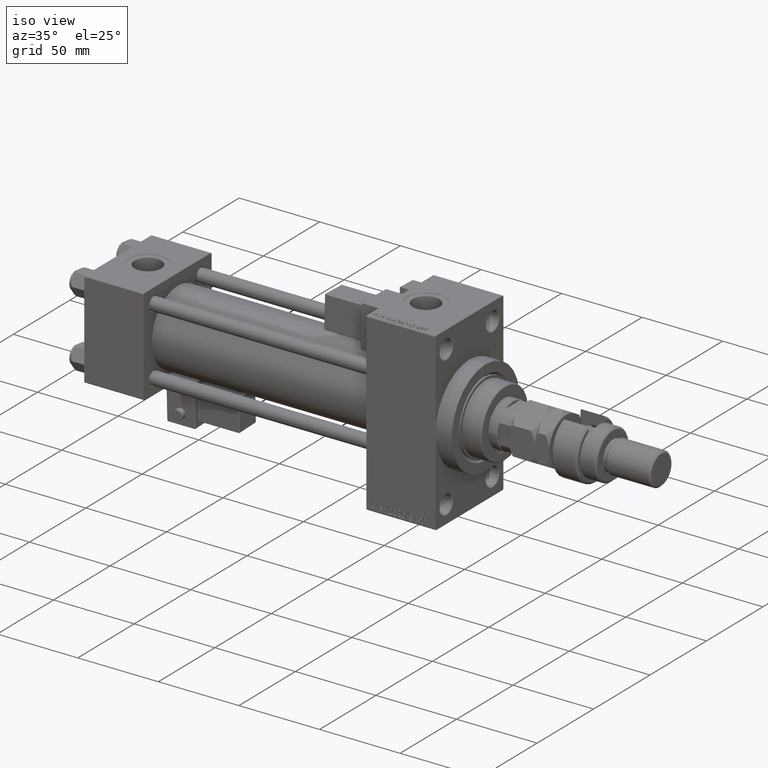
[diagram: clean part render]
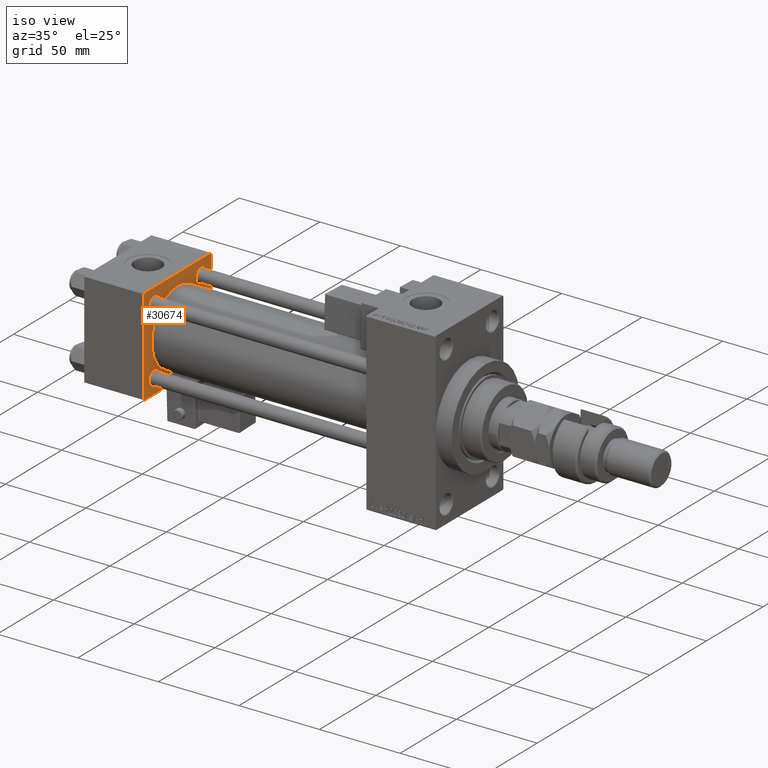
[diagram: same view with one face highlighted and labeled with its STEP entity id]
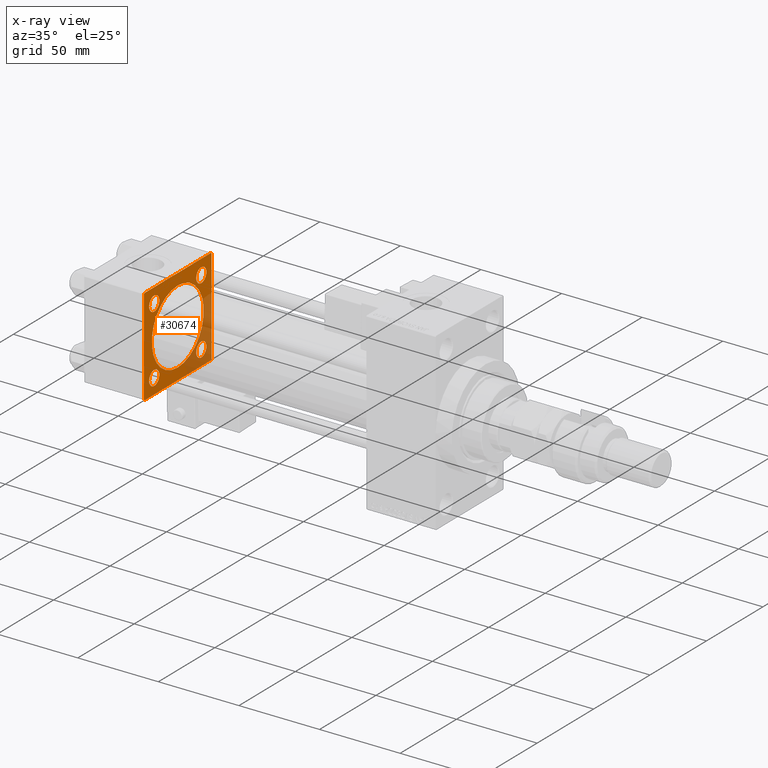
[diagram: x-ray of the same camera — body ghosted, the highlighted face saturated]
A machine part, iso view. The second image highlights one B-rep face of the part: STEP entity #30674.
The next image is the same camera in x-ray: the body ghosted, the highlighted face saturated — about 25% of this face is hidden behind the body in this view.
In plain terms, the highlighted planar face has unit normal (-1, 0, 0).
Its self-contained STEP definition (entity closure, byte-faithful):
#373 = DIRECTION ( 'NONE',  ( -1.000000000000000000, 0.000000000000000000, -0.000000000000000000 ) ) ;
#521 = DIRECTION ( 'NONE',  ( 0.000000000000000000, 0.000000000000000000, 1.000000000000000000 ) ) ;
#944 = LINE ( 'NONE', #29951, #35405 ) ;
#1176 = CARTESIAN_POINT ( 'NONE',  ( 37.00000000000000000, -29.50000000000001066, -30.00000000000000711 ) ) ;
#1608 = DIRECTION ( 'NONE',  ( 0.000000000000000000, -1.000000000000000000, -1.156482317317871725E-16 ) ) ;
#1789 = DIRECTION ( 'NONE',  ( 0.000000000000000000, 0.000000000000000000, -1.000000000000000000 ) ) ;
#2452 = VERTEX_POINT ( 'NONE', #32869 ) ;
#2667 = DIRECTION ( 'NONE',  ( 1.000000000000000000, -0.000000000000000000, 0.000000000000000000 ) ) ;
#3034 = EDGE_CURVE ( 'NONE', #18596, #51150, #33173, .T. ) ;
#3266 = CIRCLE ( 'NONE', #41217, 4.500000000000059508 ) ;
#3521 = EDGE_CURVE ( 'NONE', #53574, #22850, #52605, .T. ) ;
#3584 = CARTESIAN_POINT ( 'NONE',  ( 37.00000000000000000, 29.49999999999997868, -30.00000000000000000 ) ) ;
#3734 = ORIENTED_EDGE ( 'NONE', *, *, #8592, .T. ) ;
#5133 = EDGE_CURVE ( 'NONE', #43137, #28456, #26482, .T. ) ;
#5268 = EDGE_CURVE ( 'NONE', #52114, #28837, #3266, .T. ) ;
#5716 = VECTOR ( 'NONE', #1608, 1000.000000000000000 ) ;
#5830 = AXIS2_PLACEMENT_3D ( 'NONE', #10028, #26600, #26862 ) ;
#5910 = VECTOR ( 'NONE', #6056, 999.9999999999998863 ) ;
#6056 = DIRECTION ( 'NONE',  ( -0.000000000000000000, 0.7071067811865574537, 0.7071067811865376918 ) ) ;
#6166 = EDGE_CURVE ( 'NONE', #46315, #27228, #31816, .T. ) ;
#6347 = AXIS2_PLACEMENT_3D ( 'NONE', #50900, #51433, #17724 ) ;
#6947 = ORIENTED_EDGE ( 'NONE', *, *, #17845, .T. ) ;
#7663 = EDGE_CURVE ( 'NONE', #47950, #33315, #34149, .T. ) ;
#7927 = EDGE_CURVE ( 'NONE', #51038, #29719, #43184, .T. ) ;
#8293 = EDGE_LOOP ( 'NONE', ( #15297, #27211 ) ) ;
#8592 = EDGE_CURVE ( 'NONE', #28837, #52114, #8598, .T. ) ;
#8598 = CIRCLE ( 'NONE', #18282, 4.500000000000059508 ) ;
#8663 = FACE_BOUND ( 'NONE', #38001, .T. ) ;
#9140 = EDGE_CURVE ( 'NONE', #51150, #18596, #54508, .T. ) ;
#9191 = EDGE_CURVE ( 'NONE', #29961, #51038, #42519, .T. ) ;
#9908 = CARTESIAN_POINT ( 'NONE',  ( 37.00000000000000000, -20.84999999999999076, 16.34999999999994458 ) ) ;
#10028 = CARTESIAN_POINT ( 'NONE',  ( 37.00000000000000000, 20.84999999999999787, 20.85000000000000142 ) ) ;
#10399 = VECTOR ( 'NONE', #29528, 1000.000000000000000 ) ;
#10743 = DIRECTION ( 'NONE',  ( -1.000000000000000000, 0.000000000000000000, -0.000000000000000000 ) ) ;
#10795 = CARTESIAN_POINT ( 'NONE',  ( 37.00000000000000711, 2.146024240737016609E-16, -23.00000000000000000 ) ) ;
#11004 = DIRECTION ( 'NONE',  ( 0.000000000000000000, 0.000000000000000000, 1.000000000000000000 ) ) ;
#11784 = CARTESIAN_POINT ( 'NONE',  ( 37.00000000000000711, -2.602085213965210642E-15, 0.000000000000000000 ) ) ;
#11901 = VERTEX_POINT ( 'NONE', #10795 ) ;
#11960 = ORIENTED_EDGE ( 'NONE', *, *, #5133, .T. ) ;
#11989 = FACE_BOUND ( 'NONE', #23485, .T. ) ;
#13077 = CARTESIAN_POINT ( 'NONE',  ( 37.00000000000000000, 0.000000000000000000, 0.000000000000000000 ) ) ;
#13375 = DIRECTION ( 'NONE',  ( 0.000000000000000000, -0.7071067811865474617, 0.7071067811865474617 ) ) ;
#13834 = EDGE_CURVE ( 'NONE', #27228, #29961, #35064, .T. ) ;
#14023 = CARTESIAN_POINT ( 'NONE',  ( 37.00000000000000000, -29.49999999999998579, 29.99999999999999289 ) ) ;
#14033 = DIRECTION ( 'NONE',  ( -1.000000000000000000, 0.000000000000000000, -0.000000000000000000 ) ) ;
#14290 = CARTESIAN_POINT ( 'NONE',  ( 37.00000000000000000, -20.84999999999999076, 25.35000000000006182 ) ) ;
#14308 = EDGE_CURVE ( 'NONE', #22850, #53574, #30857, .T. ) ;
#14963 = DIRECTION ( 'NONE',  ( 0.000000000000000000, -1.000000000000000000, -1.156482317317871725E-16 ) ) ;
#15130 = CIRCLE ( 'NONE', #36313, 4.500000000000059508 ) ;
#15297 = ORIENTED_EDGE ( 'NONE', *, *, #14308, .T. ) ;
#15539 = AXIS2_PLACEMENT_3D ( 'NONE', #17647, #35795, #43812 ) ;
#15690 = EDGE_CURVE ( 'NONE', #17803, #11901, #26644, .T. ) ;
#16408 = FACE_OUTER_BOUND ( 'NONE', #23087, .T. ) ;
#16575 = CARTESIAN_POINT ( 'NONE',  ( 37.00000000000000000, -20.84999999999999076, 20.85000000000000497 ) ) ;
#16719 = CARTESIAN_POINT ( 'NONE',  ( 37.00000000000000711, -2.602085213965210642E-15, 23.00000000000000000 ) ) ;
#16826 = CARTESIAN_POINT ( 'NONE',  ( 37.00000000000000000, -30.00000000000000000, -29.50000000000001776 ) ) ;
#17224 = FACE_BOUND ( 'NONE', #8293, .T. ) ;
#17379 = DIRECTION ( 'NONE',  ( -1.000000000000000000, 0.000000000000000000, -0.000000000000000000 ) ) ;
#17486 = ORIENTED_EDGE ( 'NONE', *, *, #15690, .F. ) ;
#17598 = CARTESIAN_POINT ( 'NONE',  ( 37.00000000000000000, 29.49999999999999289, 30.00000000000000000 ) ) ;
#17647 = CARTESIAN_POINT ( 'NONE',  ( 37.00000000000000000, -20.84999999999999076, 20.85000000000000497 ) ) ;
#17724 = DIRECTION ( 'NONE',  ( 0.000000000000000000, 0.000000000000000000, 1.000000000000000000 ) ) ;
#17727 = ORIENTED_EDGE ( 'NONE', *, *, #43154, .F. ) ;
#17803 = VERTEX_POINT ( 'NONE', #16719 ) ;
#17845 = EDGE_CURVE ( 'NONE', #2452, #46315, #944, .T. ) ;
#18282 = AXIS2_PLACEMENT_3D ( 'NONE', #43870, #14033, #30877 ) ;
#18305 = EDGE_CURVE ( 'NONE', #11901, #17803, #36245, .T. ) ;
#18490 = DIRECTION ( 'NONE',  ( -0.000000000000000000, -0.7071067811865474617, -0.7071067811865474617 ) ) ;
#18596 = VERTEX_POINT ( 'NONE', #9908 ) ;
#18981 = DIRECTION ( 'NONE',  ( -1.000000000000000000, 0.000000000000000000, -0.000000000000000000 ) ) ;
#19863 = AXIS2_PLACEMENT_3D ( 'NONE', #13077, #373, #29922 ) ;
#20065 = EDGE_CURVE ( 'NONE', #33315, #47950, #15130, .T. ) ;
#22213 = ORIENTED_EDGE ( 'NONE', *, *, #6166, .T. ) ;
#22850 = VERTEX_POINT ( 'NONE', #23071 ) ;
#23071 = CARTESIAN_POINT ( 'NONE',  ( 37.00000000000000000, 20.84999999999999787, 16.34999999999994102 ) ) ;
#23087 = EDGE_LOOP ( 'NONE', ( #17727, #11960, #51389, #6947, #22213, #27184, #32672, #46777 ) ) ;
#23135 = CARTESIAN_POINT ( 'NONE',  ( 37.00000000000000000, 20.84999999999999787, -20.85000000000000142 ) ) ;
#23485 = EDGE_LOOP ( 'NONE', ( #47545, #23801 ) ) ;
#23679 = CARTESIAN_POINT ( 'NONE',  ( 37.00000000000000000, -20.84999999999999076, -25.35000000000006182 ) ) ;
#23801 = ORIENTED_EDGE ( 'NONE', *, *, #7663, .T. ) ;
#24408 = ORIENTED_EDGE ( 'NONE', *, *, #5268, .T. ) ;
#25142 = EDGE_LOOP ( 'NONE', ( #17486, #54261 ) ) ;
#25310 = AXIS2_PLACEMENT_3D ( 'NONE', #23135, #18981, #26709 ) ;
#26482 = LINE ( 'NONE', #31178, #5910 ) ;
#26600 = DIRECTION ( 'NONE',  ( -1.000000000000000000, 0.000000000000000000, -0.000000000000000000 ) ) ;
#26644 = CIRCLE ( 'NONE', #35498, 23.00000000000000000 ) ;
#26709 = DIRECTION ( 'NONE',  ( 0.000000000000000000, 0.000000000000000000, 1.000000000000000000 ) ) ;
#26862 = DIRECTION ( 'NONE',  ( 0.000000000000000000, 0.000000000000000000, 1.000000000000000000 ) ) ;
#26885 = ORIENTED_EDGE ( 'NONE', *, *, #9140, .T. ) ;
#27184 = ORIENTED_EDGE ( 'NONE', *, *, #13834, .T. ) ;
#27211 = ORIENTED_EDGE ( 'NONE', *, *, #3521, .T. ) ;
#27228 = VERTEX_POINT ( 'NONE', #14023 ) ;
#27655 = EDGE_CURVE ( 'NONE', #2452, #28456, #48749, .T. ) ;
#27860 = VECTOR ( 'NONE', #14963, 1000.000000000000000 ) ;
#28456 = VERTEX_POINT ( 'NONE', #49720 ) ;
#28837 = VERTEX_POINT ( 'NONE', #40705 ) ;
#29528 = DIRECTION ( 'NONE',  ( 0.000000000000000000, 0.000000000000000000, -1.000000000000000000 ) ) ;
#29719 = VERTEX_POINT ( 'NONE', #30848 ) ;
#29911 = ORIENTED_EDGE ( 'NONE', *, *, #3034, .T. ) ;
#29922 = DIRECTION ( 'NONE',  ( -0.000000000000000000, 0.000000000000000000, 1.000000000000000000 ) ) ;
#29951 = CARTESIAN_POINT ( 'NONE',  ( 37.00000000000000000, 29.49999999999999289, 30.00000000000000000 ) ) ;
#29961 = VERTEX_POINT ( 'NONE', #31875 ) ;
#30674 = ADVANCED_FACE ( 'NONE', ( #8663, #11989, #50932, #17224, #42100, #16408 ), #50658, .F. ) ;
#30848 = CARTESIAN_POINT ( 'NONE',  ( 37.00000000000000000, -29.50000000000000000, -30.00000000000000711 ) ) ;
#30857 = CIRCLE ( 'NONE', #53826, 4.500000000000059508 ) ;
#30877 = DIRECTION ( 'NONE',  ( 0.000000000000000000, 0.000000000000000000, 1.000000000000000000 ) ) ;
#30889 = CARTESIAN_POINT ( 'NONE',  ( 37.00000000000000000, 29.99999999999999289, -30.00000000000000000 ) ) ;
#31178 = CARTESIAN_POINT ( 'NONE',  ( 37.00000000000000000, 29.99999999999999289, -29.50000000000000000 ) ) ;
#31816 = LINE ( 'NONE', #35684, #27860 ) ;
#31875 = CARTESIAN_POINT ( 'NONE',  ( 37.00000000000000000, -30.00000000000000000, 29.49999999999999289 ) ) ;
#32672 = ORIENTED_EDGE ( 'NONE', *, *, #9191, .T. ) ;
#32869 = CARTESIAN_POINT ( 'NONE',  ( 37.00000000000000000, 29.99999999999999289, 29.50000000000000000 ) ) ;
#33173 = CIRCLE ( 'NONE', #15539, 4.500000000000059508 ) ;
#33315 = VERTEX_POINT ( 'NONE', #53960 ) ;
#33946 = CARTESIAN_POINT ( 'NONE',  ( 37.00000000000000000, -30.00000000000000000, 29.99999999999999289 ) ) ;
#34149 = CIRCLE ( 'NONE', #25310, 4.500000000000059508 ) ;
#35064 = LINE ( 'NONE', #39206, #50260 ) ;
#35405 = VECTOR ( 'NONE', #13375, 1000.000000000000114 ) ;
#35498 = AXIS2_PLACEMENT_3D ( 'NONE', #11784, #2667, #36381 ) ;
#35684 = CARTESIAN_POINT ( 'NONE',  ( 37.00000000000000000, 29.99999999999999289, 30.00000000000000000 ) ) ;
#35795 = DIRECTION ( 'NONE',  ( -1.000000000000000000, 0.000000000000000000, -0.000000000000000000 ) ) ;
#36245 = CIRCLE ( 'NONE', #6347, 23.00000000000000000 ) ;
#36313 = AXIS2_PLACEMENT_3D ( 'NONE', #36631, #49625, #45201 ) ;
#36381 = DIRECTION ( 'NONE',  ( 0.000000000000000000, 0.000000000000000000, 1.000000000000000000 ) ) ;
#36534 = CARTESIAN_POINT ( 'NONE',  ( 37.00000000000000000, 20.84999999999999787, 25.35000000000005826 ) ) ;
#36586 = CARTESIAN_POINT ( 'NONE',  ( 37.00000000000000000, 29.99999999999999289, 30.00000000000000000 ) ) ;
#36631 = CARTESIAN_POINT ( 'NONE',  ( 37.00000000000000000, 20.84999999999999787, -20.85000000000000142 ) ) ;
#37492 = VECTOR ( 'NONE', #1789, 1000.000000000000000 ) ;
#38001 = EDGE_LOOP ( 'NONE', ( #24408, #3734 ) ) ;
#38141 = CARTESIAN_POINT ( 'NONE',  ( 37.00000000000000000, 20.84999999999999787, 20.85000000000000142 ) ) ;
#38405 = DIRECTION ( 'NONE',  ( 0.000000000000000000, 0.000000000000000000, 1.000000000000000000 ) ) ;
#39206 = CARTESIAN_POINT ( 'NONE',  ( 37.00000000000000000, -30.00000000000000000, 29.49999999999999289 ) ) ;
#39428 = VECTOR ( 'NONE', #51744, 1000.000000000000114 ) ;
#39550 = EDGE_LOOP ( 'NONE', ( #29911, #26885 ) ) ;
#40705 = CARTESIAN_POINT ( 'NONE',  ( 37.00000000000000000, -20.84999999999999076, -16.34999999999994458 ) ) ;
#40838 = CARTESIAN_POINT ( 'NONE',  ( 37.00000000000000000, -20.84999999999999076, -20.85000000000000497 ) ) ;
#41217 = AXIS2_PLACEMENT_3D ( 'NONE', #40838, #10743, #11004 ) ;
#42100 = FACE_BOUND ( 'NONE', #25142, .T. ) ;
#42519 = LINE ( 'NONE', #33946, #10399 ) ;
#43137 = VERTEX_POINT ( 'NONE', #3584 ) ;
#43154 = EDGE_CURVE ( 'NONE', #43137, #29719, #48015, .T. ) ;
#43184 = LINE ( 'NONE', #1176, #39428 ) ;
#43812 = DIRECTION ( 'NONE',  ( 0.000000000000000000, 0.000000000000000000, 1.000000000000000000 ) ) ;
#43870 = CARTESIAN_POINT ( 'NONE',  ( 37.00000000000000000, -20.84999999999999076, -20.85000000000000497 ) ) ;
#45201 = DIRECTION ( 'NONE',  ( 0.000000000000000000, 0.000000000000000000, 1.000000000000000000 ) ) ;
#46315 = VERTEX_POINT ( 'NONE', #17598 ) ;
#46366 = CARTESIAN_POINT ( 'NONE',  ( 37.00000000000000000, 20.84999999999999787, -16.34999999999994102 ) ) ;
#46777 = ORIENTED_EDGE ( 'NONE', *, *, #7927, .T. ) ;
#47545 = ORIENTED_EDGE ( 'NONE', *, *, #20065, .T. ) ;
#47950 = VERTEX_POINT ( 'NONE', #46366 ) ;
#48015 = LINE ( 'NONE', #30889, #5716 ) ;
#48749 = LINE ( 'NONE', #36586, #37492 ) ;
#49625 = DIRECTION ( 'NONE',  ( -1.000000000000000000, 0.000000000000000000, -0.000000000000000000 ) ) ;
#49720 = CARTESIAN_POINT ( 'NONE',  ( 37.00000000000000000, 29.99999999999999289, -29.50000000000000000 ) ) ;
#50260 = VECTOR ( 'NONE', #18490, 1000.000000000000114 ) ;
#50315 = DIRECTION ( 'NONE',  ( -1.000000000000000000, 0.000000000000000000, -0.000000000000000000 ) ) ;
#50658 = PLANE ( 'NONE',  #19863 ) ;
#50900 = CARTESIAN_POINT ( 'NONE',  ( 37.00000000000000711, -2.602085213965210642E-15, 0.000000000000000000 ) ) ;
#50932 = FACE_BOUND ( 'NONE', #39550, .T. ) ;
#50990 = AXIS2_PLACEMENT_3D ( 'NONE', #16575, #17379, #521 ) ;
#51038 = VERTEX_POINT ( 'NONE', #16826 ) ;
#51150 = VERTEX_POINT ( 'NONE', #14290 ) ;
#51389 = ORIENTED_EDGE ( 'NONE', *, *, #27655, .F. ) ;
#51433 = DIRECTION ( 'NONE',  ( 1.000000000000000000, -0.000000000000000000, 0.000000000000000000 ) ) ;
#51744 = DIRECTION ( 'NONE',  ( 0.000000000000000000, 0.7071067811865474617, -0.7071067811865474617 ) ) ;
#52114 = VERTEX_POINT ( 'NONE', #23679 ) ;
#52605 = CIRCLE ( 'NONE', #5830, 4.500000000000059508 ) ;
#53574 = VERTEX_POINT ( 'NONE', #36534 ) ;
#53826 = AXIS2_PLACEMENT_3D ( 'NONE', #38141, #50315, #38405 ) ;
#53960 = CARTESIAN_POINT ( 'NONE',  ( 37.00000000000000000, 20.84999999999999787, -25.35000000000005826 ) ) ;
#54261 = ORIENTED_EDGE ( 'NONE', *, *, #18305, .F. ) ;
#54508 = CIRCLE ( 'NONE', #50990, 4.500000000000059508 ) ;